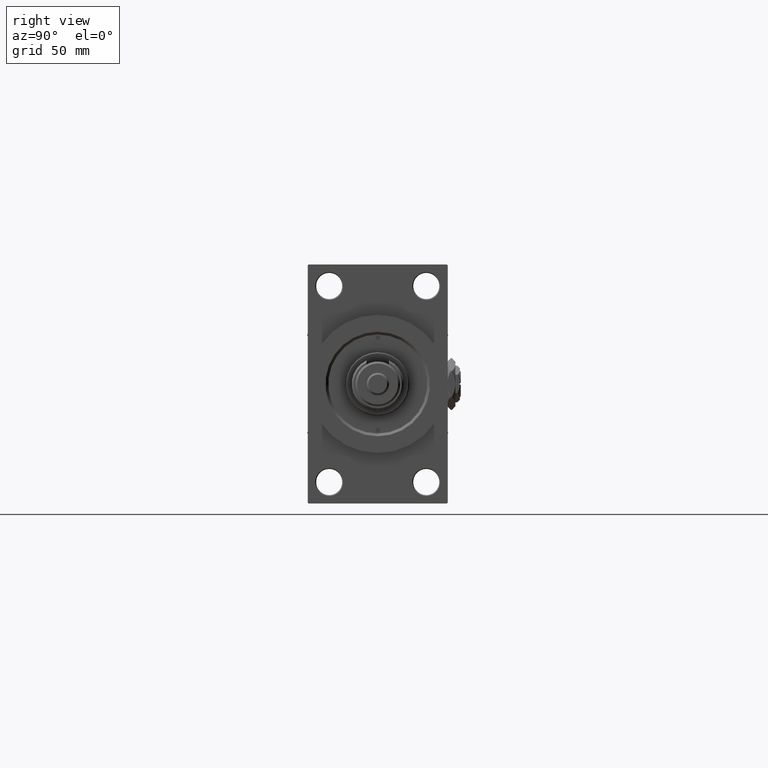
[diagram: clean part render]
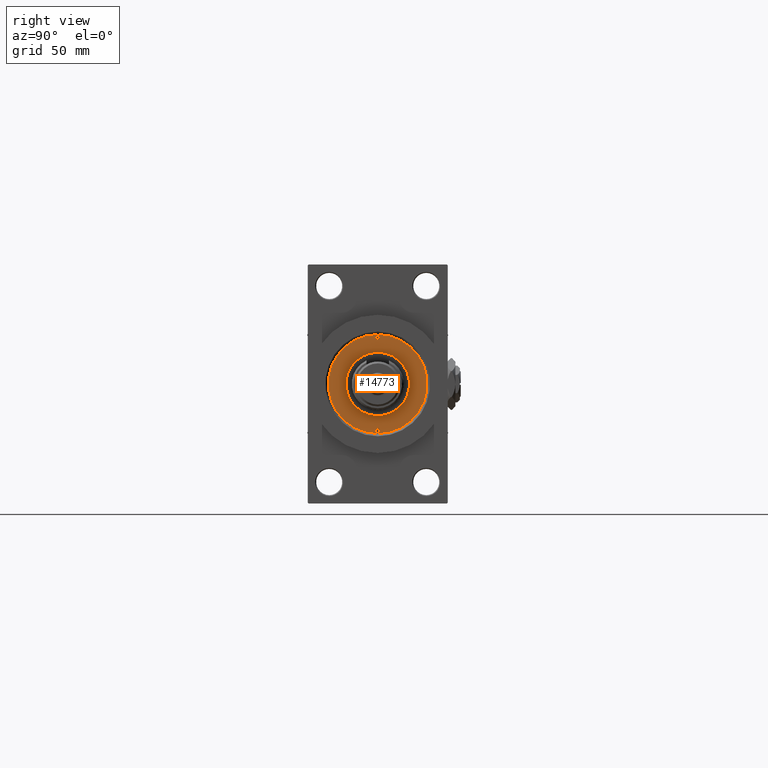
[diagram: same view with one face highlighted and labeled with its STEP entity id]
A machine part, right view. The second image highlights one B-rep face of the part: STEP entity #14773.
In plain terms, the highlighted planar face has unit normal (1, -0, -0).
Its self-contained STEP definition (entity closure, byte-faithful):
#627 = CIRCLE ( 'NONE', #12435, 26.50000000000000355 ) ;
#861 = CARTESIAN_POINT ( 'NONE',  ( -17.00000000000000000, 0.000000000000000000, 43.25999999999999801 ) ) ;
#3639 = EDGE_LOOP ( 'NONE', ( #10571, #36069 ) ) ;
#4330 = DIRECTION ( 'NONE',  ( 1.000000000000000000, 0.000000000000000000, 0.000000000000000000 ) ) ;
#4605 = DIRECTION ( 'NONE',  ( 1.000000000000000000, 0.000000000000000000, -0.000000000000000000 ) ) ;
#5708 = EDGE_CURVE ( 'NONE', #24957, #26139, #28814, .T. ) ;
#6503 = ORIENTED_EDGE ( 'NONE', *, *, #32384, .F. ) ;
#6580 = EDGE_LOOP ( 'NONE', ( #6503, #7644 ) ) ;
#7644 = ORIENTED_EDGE ( 'NONE', *, *, #52351, .F. ) ;
#8089 = EDGE_LOOP ( 'NONE', ( #49119, #30047 ) ) ;
#10030 = DIRECTION ( 'NONE',  ( 1.000000000000000000, 0.000000000000000000, 0.000000000000000000 ) ) ;
#10571 = ORIENTED_EDGE ( 'NONE', *, *, #51294, .F. ) ;
#10732 = CIRCLE ( 'NONE', #35297, 1.249999999999997558 ) ;
#10941 = CARTESIAN_POINT ( 'NONE',  ( 26.50000000000000355, 3.245314017740486554E-15, 43.25999999999999801 ) ) ;
#11118 = CARTESIAN_POINT ( 'NONE',  ( 23.50000000000000355, 1.530808498934188612E-16, 43.25999999999999801 ) ) ;
#12211 = EDGE_CURVE ( 'NONE', #29987, #50076, #40943, .T. ) ;
#12435 = AXIS2_PLACEMENT_3D ( 'NONE', #19312, #51587, #29098 ) ;
#12550 = CARTESIAN_POINT ( 'NONE',  ( 17.00000000000000000, 2.081899558550500280E-15, 43.25999999999999801 ) ) ;
#13335 = DIRECTION ( 'NONE',  ( 0.000000000000000000, 0.000000000000000000, 1.000000000000000000 ) ) ;
#14362 = VERTEX_POINT ( 'NONE', #11118 ) ;
#14392 = CARTESIAN_POINT ( 'NONE',  ( -26.00000000000000000, 1.530808498934188612E-16, 43.25999999999999801 ) ) ;
#14596 = DIRECTION ( 'NONE',  ( -0.000000000000000000, -0.000000000000000000, 1.000000000000000000 ) ) ;
#14773 = ADVANCED_FACE ( 'NONE', ( #36660, #16516, #33481, #49593 ), #28978, .T. ) ;
#15517 = AXIS2_PLACEMENT_3D ( 'NONE', #23596, #43725, #24376 ) ;
#16516 = FACE_BOUND ( 'NONE', #3639, .T. ) ;
#17029 = VERTEX_POINT ( 'NONE', #18515 ) ;
#18515 = CARTESIAN_POINT ( 'NONE',  ( 26.00000000000000000, 0.000000000000000000, 43.25999999999999801 ) ) ;
#18575 = CARTESIAN_POINT ( 'NONE',  ( -26.50000000000000355, 0.000000000000000000, 43.25999999999999801 ) ) ;
#18793 = DIRECTION ( 'NONE',  ( -0.000000000000000000, -0.000000000000000000, 1.000000000000000000 ) ) ;
#19312 = CARTESIAN_POINT ( 'NONE',  ( 0.000000000000000000, 0.000000000000000000, 43.25999999999999801 ) ) ;
#22105 = CARTESIAN_POINT ( 'NONE',  ( 24.75000000000000000, 0.000000000000000000, 43.25999999999999801 ) ) ;
#22358 = DIRECTION ( 'NONE',  ( -0.000000000000000000, -0.000000000000000000, 1.000000000000000000 ) ) ;
#22721 = CARTESIAN_POINT ( 'NONE',  ( 0.000000000000000000, 0.000000000000000000, 43.25999999999999801 ) ) ;
#23007 = DIRECTION ( 'NONE',  ( 1.000000000000000000, 0.000000000000000000, 0.000000000000000000 ) ) ;
#23596 = CARTESIAN_POINT ( 'NONE',  ( -24.75000000000000000, 0.000000000000000000, 43.25999999999999801 ) ) ;
#23878 = AXIS2_PLACEMENT_3D ( 'NONE', #22105, #22358, #29274 ) ;
#24376 = DIRECTION ( 'NONE',  ( 1.000000000000000000, 0.000000000000000000, 0.000000000000000000 ) ) ;
#24957 = VERTEX_POINT ( 'NONE', #10941 ) ;
#26139 = VERTEX_POINT ( 'NONE', #18575 ) ;
#26496 = AXIS2_PLACEMENT_3D ( 'NONE', #40893, #13335, #4605 ) ;
#26992 = CARTESIAN_POINT ( 'NONE',  ( 0.000000000000000000, 0.000000000000000000, 43.25999999999999801 ) ) ;
#27611 = CIRCLE ( 'NONE', #36098, 17.00000000000000000 ) ;
#27693 = VERTEX_POINT ( 'NONE', #12550 ) ;
#27914 = CARTESIAN_POINT ( 'NONE',  ( 0.000000000000000000, 0.000000000000000000, 43.25999999999999801 ) ) ;
#28814 = CIRCLE ( 'NONE', #40643, 26.50000000000000355 ) ;
#28978 = PLANE ( 'NONE',  #26496 ) ;
#29098 = DIRECTION ( 'NONE',  ( 1.000000000000000000, 0.000000000000000000, 0.000000000000000000 ) ) ;
#29274 = DIRECTION ( 'NONE',  ( 1.000000000000000000, 0.000000000000000000, 0.000000000000000000 ) ) ;
#29987 = VERTEX_POINT ( 'NONE', #14392 ) ;
#30047 = ORIENTED_EDGE ( 'NONE', *, *, #5708, .T. ) ;
#30119 = AXIS2_PLACEMENT_3D ( 'NONE', #35011, #14596, #33972 ) ;
#30799 = CIRCLE ( 'NONE', #40096, 17.00000000000000000 ) ;
#31073 = EDGE_CURVE ( 'NONE', #50076, #29987, #51198, .T. ) ;
#31119 = ORIENTED_EDGE ( 'NONE', *, *, #31073, .F. ) ;
#31500 = CARTESIAN_POINT ( 'NONE',  ( 24.75000000000000000, 0.000000000000000000, 43.25999999999999801 ) ) ;
#32384 = EDGE_CURVE ( 'NONE', #47166, #27693, #27611, .T. ) ;
#33481 = FACE_BOUND ( 'NONE', #6580, .T. ) ;
#33972 = DIRECTION ( 'NONE',  ( 1.000000000000000000, 0.000000000000000000, 0.000000000000000000 ) ) ;
#34988 = EDGE_LOOP ( 'NONE', ( #31119, #41735 ) ) ;
#35011 = CARTESIAN_POINT ( 'NONE',  ( -24.75000000000000000, 0.000000000000000000, 43.25999999999999801 ) ) ;
#35297 = AXIS2_PLACEMENT_3D ( 'NONE', #31500, #18793, #43160 ) ;
#36069 = ORIENTED_EDGE ( 'NONE', *, *, #37090, .F. ) ;
#36098 = AXIS2_PLACEMENT_3D ( 'NONE', #26992, #43147, #23007 ) ;
#36660 = FACE_BOUND ( 'NONE', #34988, .T. ) ;
#36908 = DIRECTION ( 'NONE',  ( 0.000000000000000000, 0.000000000000000000, 1.000000000000000000 ) ) ;
#37090 = EDGE_CURVE ( 'NONE', #14362, #17029, #10732, .T. ) ;
#37172 = EDGE_CURVE ( 'NONE', #26139, #24957, #627, .T. ) ;
#40096 = AXIS2_PLACEMENT_3D ( 'NONE', #27914, #36908, #4330 ) ;
#40643 = AXIS2_PLACEMENT_3D ( 'NONE', #22721, #42348, #10030 ) ;
#40893 = CARTESIAN_POINT ( 'NONE',  ( 0.000000000000000000, 0.000000000000000000, 43.25999999999999801 ) ) ;
#40943 = CIRCLE ( 'NONE', #15517, 1.249999999999997558 ) ;
#41673 = CIRCLE ( 'NONE', #23878, 1.249999999999997558 ) ;
#41735 = ORIENTED_EDGE ( 'NONE', *, *, #12211, .F. ) ;
#42348 = DIRECTION ( 'NONE',  ( 0.000000000000000000, 0.000000000000000000, 1.000000000000000000 ) ) ;
#43147 = DIRECTION ( 'NONE',  ( 0.000000000000000000, 0.000000000000000000, 1.000000000000000000 ) ) ;
#43160 = DIRECTION ( 'NONE',  ( 1.000000000000000000, 0.000000000000000000, 0.000000000000000000 ) ) ;
#43725 = DIRECTION ( 'NONE',  ( -0.000000000000000000, -0.000000000000000000, 1.000000000000000000 ) ) ;
#47166 = VERTEX_POINT ( 'NONE', #861 ) ;
#49119 = ORIENTED_EDGE ( 'NONE', *, *, #37172, .T. ) ;
#49593 = FACE_OUTER_BOUND ( 'NONE', #8089, .T. ) ;
#50076 = VERTEX_POINT ( 'NONE', #50971 ) ;
#50971 = CARTESIAN_POINT ( 'NONE',  ( -23.50000000000000355, 0.000000000000000000, 43.25999999999999801 ) ) ;
#51198 = CIRCLE ( 'NONE', #30119, 1.249999999999997558 ) ;
#51294 = EDGE_CURVE ( 'NONE', #17029, #14362, #41673, .T. ) ;
#51587 = DIRECTION ( 'NONE',  ( 0.000000000000000000, 0.000000000000000000, 1.000000000000000000 ) ) ;
#52351 = EDGE_CURVE ( 'NONE', #27693, #47166, #30799, .T. ) ;